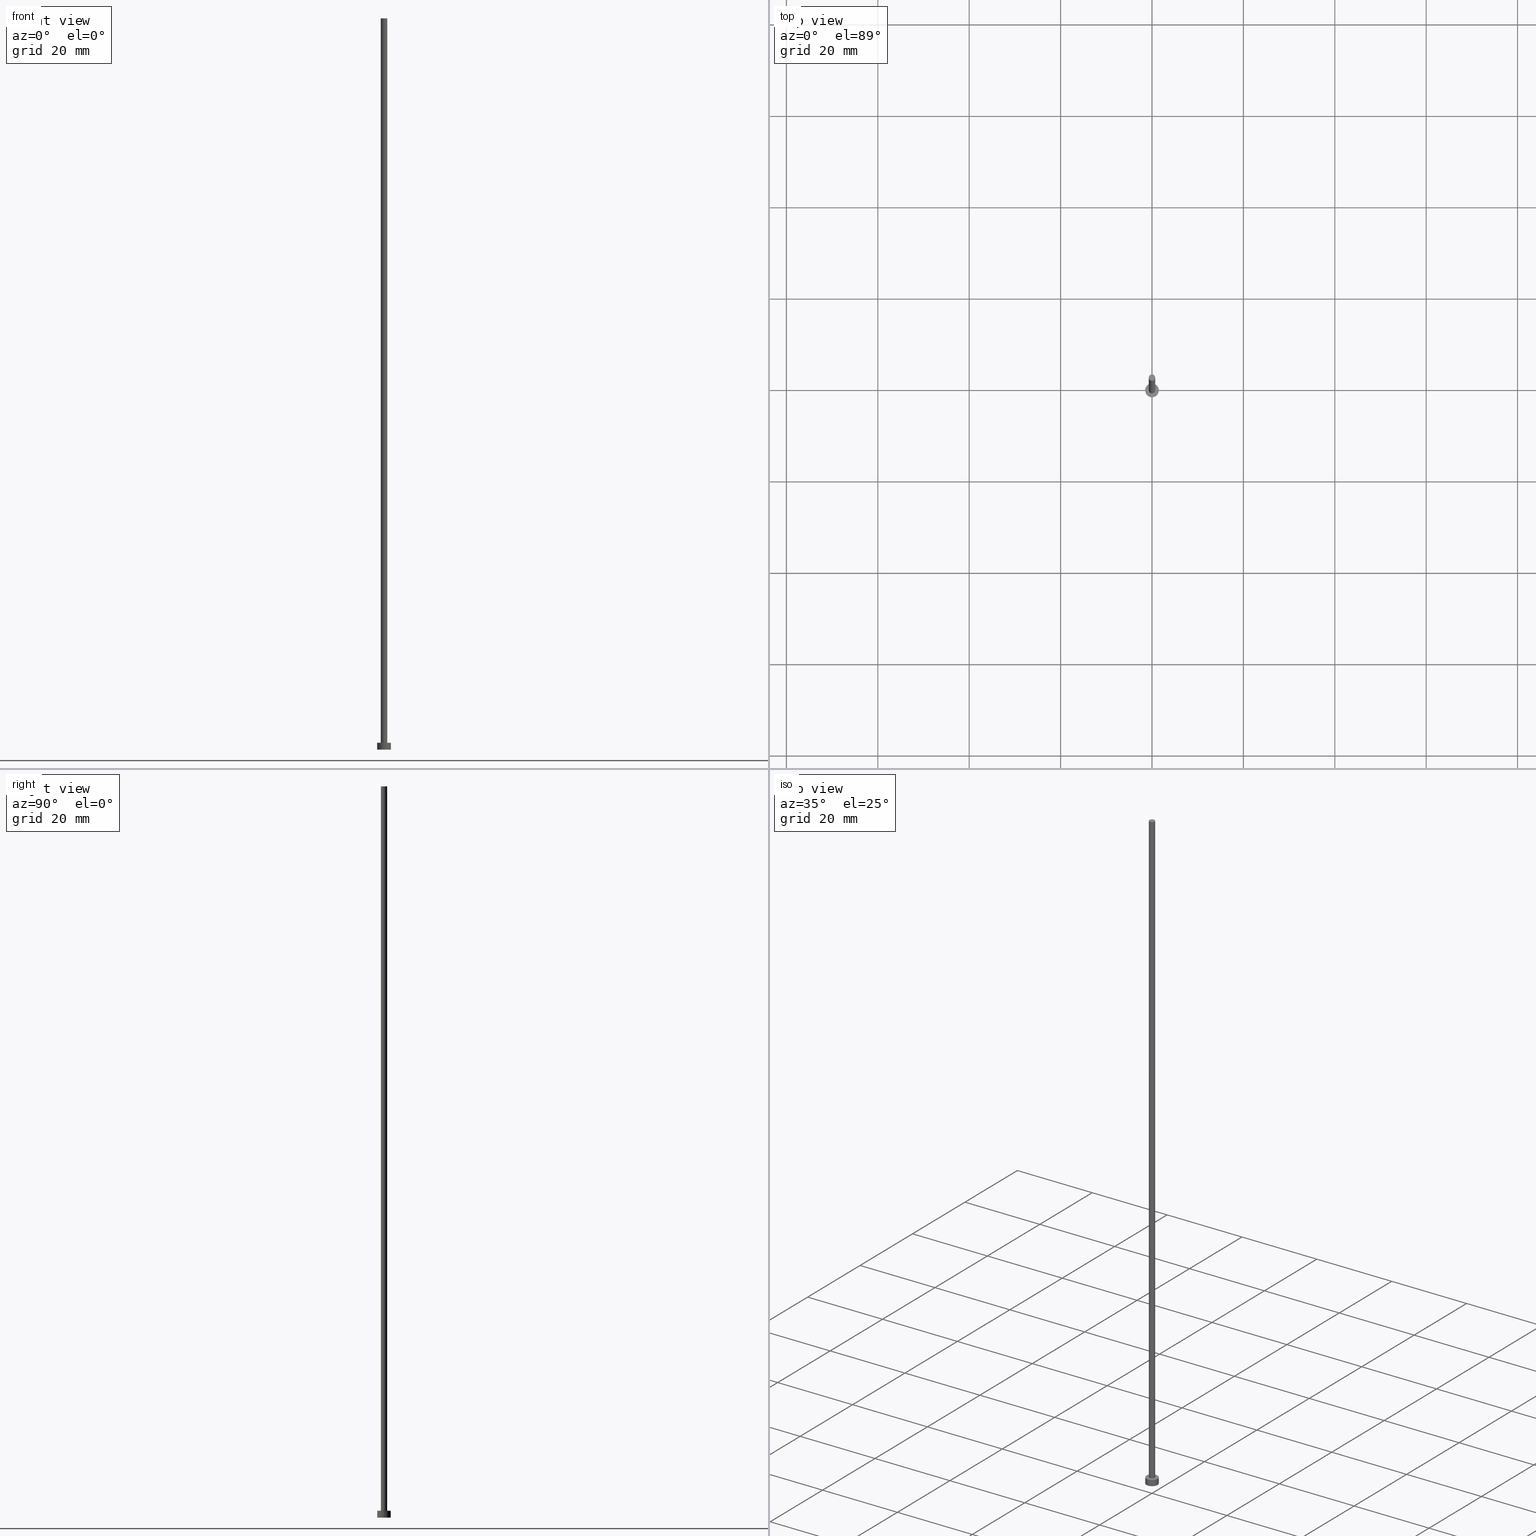
[diagram: canonical four-view strip — front | top / right | iso, engineering-drawing reading convention]
A machine part, canonical four-view strip (front | top / right | iso — engineering-drawing reading convention). The complete STEP part file that produces these views, byte-faithful:
ISO-10303-21;
HEADER;
FILE_DESCRIPTION (( 'STEP AP203' ),
    '1' );
FILE_NAME ('8cf9.STEP',
    '2023-02-13T15:25:21',
    ( '' ),
    ( '' ),
    'SwSTEP 2.0',
    'SolidWorks 2019',
    '' );
FILE_SCHEMA (( 'CONFIG_CONTROL_DESIGN' ));
ENDSEC;

DATA;
#1 = CARTESIAN_POINT ( 'NONE',  ( 0.000000000000000000, 0.000000000000000000, 160.0000000000000000 ) ) ;
#2 = CC_DESIGN_PERSON_AND_ORGANIZATION_ASSIGNMENT ( #185, #42, ( #193 ) ) ;
#3 = APPLICATION_CONTEXT ( 'configuration controlled 3d designs of mechanical parts and assemblies' ) ;
#4 = CC_DESIGN_APPROVAL ( #113, ( #115 ) ) ;
#5 = ORIENTED_EDGE ( 'NONE', *, *, #92, .T. ) ;
#6 = EDGE_CURVE ( 'NONE', #149, #45, #29, .T. ) ;
#7 = AXIS2_PLACEMENT_3D ( 'NONE', #114, #95, #34 ) ;
#8 = DIRECTION ( 'NONE',  ( 0.000000000000000000, 0.000000000000000000, 1.000000000000000000 ) ) ;
#9 = AXIS2_PLACEMENT_3D ( 'NONE', #63, #150, #192 ) ;
#10 = ORIENTED_EDGE ( 'NONE', *, *, #223, .T. ) ;
#11 = CARTESIAN_POINT ( 'NONE',  ( -0.6999999999999999556, 0.000000000000000000, 160.0000000000000000 ) ) ;
#12 = ADVANCED_FACE ( 'NONE', ( #183, #89 ), #155, .T. ) ;
#13 = VERTEX_POINT ( 'NONE', #11 ) ;
#14 = AXIS2_PLACEMENT_3D ( 'NONE', #157, #80, #221 ) ;
#15 = COORDINATED_UNIVERSAL_TIME_OFFSET ( 1, 0, .AHEAD. ) ;
#16 = DIRECTION ( 'NONE',  ( 0.000000000000000000, 0.000000000000000000, 1.000000000000000000 ) ) ;
#17 = VERTEX_POINT ( 'NONE', #152 ) ;
#18 = CALENDAR_DATE ( 2023, 13, 2 ) ;
#19 = UNCERTAINTY_MEASURE_WITH_UNIT (LENGTH_MEASURE( 1.000000000000000082E-05 ), #249, 'distance_accuracy_value', 'NONE');
#20 = AXIS2_PLACEMENT_3D ( 'NONE', #32, #16, #134 ) ;
#21 = EDGE_LOOP ( 'NONE', ( #209, #61, #133, #68 ) ) ;
#22 = DIRECTION ( 'NONE',  ( -1.000000000000000000, 0.000000000000000000, 0.000000000000000000 ) ) ;
#23 = CARTESIAN_POINT ( 'NONE',  ( -1.500000000000000222, 0.000000000000000000, 1.500000000000000000 ) ) ;
#24 = DIRECTION ( 'NONE',  ( -0.000000000000000000, -0.000000000000000000, -1.000000000000000000 ) ) ;
#25 = ORIENTED_EDGE ( 'NONE', *, *, #6, .T. ) ;
#26 =( NAMED_UNIT ( * ) PLANE_ANGLE_UNIT ( ) SI_UNIT ( $, .RADIAN. ) );
#27 = EDGE_LOOP ( 'NONE', ( #177, #102 ) ) ;
#28 = FACE_OUTER_BOUND ( 'NONE', #21, .T. ) ;
#29 = LINE ( 'NONE', #199, #175 ) ;
#30 = CARTESIAN_POINT ( 'NONE',  ( 0.6999999999999999556, 8.572527594031471957E-17, 160.0000000000000000 ) ) ;
#31 = EDGE_CURVE ( 'NONE', #67, #45, #93, .T. ) ;
#32 = CARTESIAN_POINT ( 'NONE',  ( 0.000000000000000000, 0.000000000000000000, 1.500000000000000000 ) ) ;
#33 = ORIENTED_EDGE ( 'NONE', *, *, #223, .F. ) ;
#34 = DIRECTION ( 'NONE',  ( -1.000000000000000000, 0.000000000000000000, 0.000000000000000000 ) ) ;
#35 = CARTESIAN_POINT ( 'NONE',  ( 0.000000000000000000, 0.000000000000000000, 0.000000000000000000 ) ) ;
#36 = PRODUCT_RELATED_PRODUCT_CATEGORY ( 'detail', '', ( #234 ) ) ;
#37 = LOCAL_TIME ( 16, 25, 21.00000000000000000, #198 ) ;
#38 = DATE_TIME_ROLE ( 'classification_date' ) ;
#39 = PERSON_AND_ORGANIZATION ( #75, #179 ) ;
#40 = MECHANICAL_CONTEXT ( 'NONE', #3, 'mechanical' ) ;
#41 = ORIENTED_EDGE ( 'NONE', *, *, #208, .F. ) ;
#42 = PERSON_AND_ORGANIZATION_ROLE ( 'design_supplier' ) ;
#43 = LINE ( 'NONE', #101, #129 ) ;
#44 = DIRECTION ( 'NONE',  ( -0.000000000000000000, -0.000000000000000000, -1.000000000000000000 ) ) ;
#45 = VERTEX_POINT ( 'NONE', #235 ) ;
#46 = DIRECTION ( 'NONE',  ( 0.000000000000000000, 0.000000000000000000, 1.000000000000000000 ) ) ;
#47 = APPROVAL_DATE_TIME ( #228, #96 ) ;
#48 = EDGE_LOOP ( 'NONE', ( #220, #250 ) ) ;
#49 = PERSON_AND_ORGANIZATION ( #75, #179 ) ;
#50 = AXIS2_PLACEMENT_3D ( 'NONE', #72, #46, #104 ) ;
#51 = CARTESIAN_POINT ( 'NONE',  ( 1.500000000000000222, 1.836970198721030181E-16, 1.500000000000000000 ) ) ;
#52 = APPROVAL_STATUS ( 'not_yet_approved' ) ;
#53 = LOCAL_TIME ( 16, 25, 21.00000000000000000, #218 ) ;
#54 = LOCAL_TIME ( 16, 25, 21.00000000000000000, #254 ) ;
#55 = DIRECTION ( 'NONE',  ( -0.000000000000000000, -0.000000000000000000, -1.000000000000000000 ) ) ;
#56 = EDGE_CURVE ( 'NONE', #231, #76, #165, .T. ) ;
#57 = DATE_AND_TIME ( #123, #170 ) ;
#58 = PERSON_AND_ORGANIZATION_ROLE ( 'design_owner' ) ;
#59 = AXIS2_PLACEMENT_3D ( 'NONE', #147, #172, #126 ) ;
#60 = APPROVAL_PERSON_ORGANIZATION ( #127, #96, #195 ) ;
#61 = ORIENTED_EDGE ( 'NONE', *, *, #56, .T. ) ;
#62 = AXIS2_PLACEMENT_3D ( 'NONE', #207, #188, #212 ) ;
#63 = CARTESIAN_POINT ( 'NONE',  ( 0.000000000000000000, 0.000000000000000000, 160.0000000000000000 ) ) ;
#64 = CALENDAR_DATE ( 2023, 13, 2 ) ;
#65 = CARTESIAN_POINT ( 'NONE',  ( 1.500000000000000222, 1.836970198721030181E-16, 0.000000000000000000 ) ) ;
#66 = CARTESIAN_POINT ( 'NONE',  ( 0.000000000000000000, 0.000000000000000000, 160.0000000000000000 ) ) ;
#67 = VERTEX_POINT ( 'NONE', #194 ) ;
#68 = ORIENTED_EDGE ( 'NONE', *, *, #215, .F. ) ;
#69 = DIRECTION ( 'NONE',  ( 1.000000000000000000, 0.000000000000000000, -0.000000000000000000 ) ) ;
#70 = CC_DESIGN_PERSON_AND_ORGANIZATION_ASSIGNMENT ( #87, #90, ( #153 ) ) ;
#71 = PERSON_AND_ORGANIZATION ( #75, #179 ) ;
#72 = CARTESIAN_POINT ( 'NONE',  ( 0.000000000000000000, 0.000000000000000000, 1.500000000000000000 ) ) ;
#73 = EDGE_CURVE ( 'NONE', #231, #83, #85, .T. ) ;
#74 = DIRECTION ( 'NONE',  ( -0.000000000000000000, -0.000000000000000000, -1.000000000000000000 ) ) ;
#75 = PERSON ( 'NEUR�EN�', 'NEUR�EN�', 'NEUR�EN�', ('NEUR�EN�'), ('NEUR�EN�'), ('NEUR�EN�') ) ;
#76 = VERTEX_POINT ( 'NONE', #65 ) ;
#77 = DIRECTION ( 'NONE',  ( -0.000000000000000000, -0.000000000000000000, -1.000000000000000000 ) ) ;
#78 = CARTESIAN_POINT ( 'NONE',  ( 0.000000000000000000, 0.000000000000000000, 1.500000000000000000 ) ) ;
#79 = EDGE_LOOP ( 'NONE', ( #125, #128, #5, #166 ) ) ;
#80 = DIRECTION ( 'NONE',  ( 0.000000000000000000, 0.000000000000000000, 1.000000000000000000 ) ) ;
#81 = CC_DESIGN_APPROVAL ( #135, ( #193 ) ) ;
#82 = CC_DESIGN_DATE_AND_TIME_ASSIGNMENT ( #178, #38, ( #115 ) ) ;
#83 = VERTEX_POINT ( 'NONE', #23 ) ;
#84 = ORIENTED_EDGE ( 'NONE', *, *, #31, .F. ) ;
#85 = CIRCLE ( 'NONE', #238, 1.500000000000000222 ) ;
#86 = APPROVAL_PERSON_ORGANIZATION ( #49, #135, #91 ) ;
#87 = PERSON_AND_ORGANIZATION ( #75, #179 ) ;
#88 = EDGE_LOOP ( 'NONE', ( #163, #41, #159, #10 ) ) ;
#89 = FACE_OUTER_BOUND ( 'NONE', #27, .T. ) ;
#90 = PERSON_AND_ORGANIZATION_ROLE ( 'creator' ) ;
#91 = APPROVAL_ROLE ( '' ) ;
#92 = EDGE_CURVE ( 'NONE', #13, #67, #43, .T. ) ;
#93 = CIRCLE ( 'NONE', #50, 0.6999999999999999556 ) ;
#94 = LOCAL_TIME ( 16, 25, 21.00000000000000000, #15 ) ;
#95 = DIRECTION ( 'NONE',  ( -0.000000000000000000, -0.000000000000000000, -1.000000000000000000 ) ) ;
#96 = APPROVAL ( #246, 'NEUR�EN�' ) ;
#97 = CIRCLE ( 'NONE', #62, 1.500000000000000222 ) ;
#98 = CC_DESIGN_DATE_AND_TIME_ASSIGNMENT ( #151, #232, ( #153 ) ) ;
#99 = CC_DESIGN_SECURITY_CLASSIFICATION ( #115, ( #193 ) ) ;
#100 = CARTESIAN_POINT ( 'NONE',  ( 1.500000000000000222, 1.836970198721030181E-16, 1.500000000000000000 ) ) ;
#101 = CARTESIAN_POINT ( 'NONE',  ( -0.6999999999999999556, 0.000000000000000000, 160.0000000000000000 ) ) ;
#102 = ORIENTED_EDGE ( 'NONE', *, *, #73, .T. ) ;
#103 = APPROVAL_DATE_TIME ( #230, #113 ) ;
#104 = DIRECTION ( 'NONE',  ( 1.000000000000000000, 0.000000000000000000, 0.000000000000000000 ) ) ;
#105 = MANIFOLD_SOLID_BREP ( 'P�idat vysunut�m3', #146 ) ;
#106 = FACE_OUTER_BOUND ( 'NONE', #202, .T. ) ;
#107 = ORIENTED_EDGE ( 'NONE', *, *, #92, .F. ) ;
#108 = DIRECTION ( 'NONE',  ( -1.000000000000000000, 0.000000000000000000, 0.000000000000000000 ) ) ;
#109 = EDGE_CURVE ( 'NONE', #13, #149, #164, .T. ) ;
#110 = APPROVAL_STATUS ( 'not_yet_approved' ) ;
#111 = AXIS2_PLACEMENT_3D ( 'NONE', #35, #173, #252 ) ;
#112 = APPROVAL_DATE_TIME ( #57, #135 ) ;
#113 = APPROVAL ( #52, 'NEUR�EN�' ) ;
#114 = CARTESIAN_POINT ( 'NONE',  ( 0.000000000000000000, 0.000000000000000000, 1.500000000000000000 ) ) ;
#115 = SECURITY_CLASSIFICATION ( '', '', #242 ) ;
#116 = PLANE ( 'NONE',  #9 ) ;
#117 = CYLINDRICAL_SURFACE ( 'NONE', #233, 0.6999999999999999556 ) ;
#118 = CIRCLE ( 'NONE', #148, 0.6999999999999999556 ) ;
#119 = AXIS2_PLACEMENT_3D ( 'NONE', #248, #210, #69 ) ;
#120 = DIRECTION ( 'NONE',  ( 0.000000000000000000, 0.000000000000000000, 1.000000000000000000 ) ) ;
#121 = EDGE_CURVE ( 'NONE', #76, #17, #97, .T. ) ;
#122 = CYLINDRICAL_SURFACE ( 'NONE', #136, 0.6999999999999999556 ) ;
#123 = CALENDAR_DATE ( 2023, 13, 2 ) ;
#124 = APPROVAL_PERSON_ORGANIZATION ( #39, #113, #139 ) ;
#125 = ORIENTED_EDGE ( 'NONE', *, *, #6, .F. ) ;
#126 = DIRECTION ( 'NONE',  ( 1.000000000000000000, 0.000000000000000000, -0.000000000000000000 ) ) ;
#127 = PERSON_AND_ORGANIZATION ( #75, #179 ) ;
#128 = ORIENTED_EDGE ( 'NONE', *, *, #109, .F. ) ;
#129 = VECTOR ( 'NONE', #24, 1000.000000000000000 ) ;
#130 = CALENDAR_DATE ( 2023, 13, 2 ) ;
#131 = ADVANCED_BREP_SHAPE_REPRESENTATION ( '8cf9', ( #105, #111 ), #200 ) ;
#132 = CC_DESIGN_PERSON_AND_ORGANIZATION_ASSIGNMENT ( #219, #162, ( #115 ) ) ;
#133 = ORIENTED_EDGE ( 'NONE', *, *, #121, .T. ) ;
#134 = DIRECTION ( 'NONE',  ( 1.000000000000000000, 0.000000000000000000, 0.000000000000000000 ) ) ;
#135 = APPROVAL ( #110, 'NEUR�EN�' ) ;
#136 = AXIS2_PLACEMENT_3D ( 'NONE', #1, #216, #22 ) ;
#137 = DIRECTION ( 'NONE',  ( 0.000000000000000000, 0.000000000000000000, 1.000000000000000000 ) ) ;
#138 = CARTESIAN_POINT ( 'NONE',  ( 0.000000000000000000, 0.000000000000000000, 1.500000000000000000 ) ) ;
#139 = APPROVAL_ROLE ( '' ) ;
#140 = DIRECTION ( 'NONE',  ( 1.000000000000000000, 0.000000000000000000, 0.000000000000000000 ) ) ;
#141 = FACE_OUTER_BOUND ( 'NONE', #79, .T. ) ;
#142 = ADVANCED_FACE ( 'NONE', ( #141 ), #117, .T. ) ;
#143 = COORDINATED_UNIVERSAL_TIME_OFFSET ( 1, 0, .AHEAD. ) ;
#144 = ORIENTED_EDGE ( 'NONE', *, *, #171, .F. ) ;
#145 = ORIENTED_EDGE ( 'NONE', *, *, #239, .T. ) ;
#146 = CLOSED_SHELL ( 'NONE', ( #201, #158, #168, #12, #176, #142, #197 ) ) ;
#147 = CARTESIAN_POINT ( 'NONE',  ( 0.000000000000000000, 0.000000000000000000, 1.500000000000000000 ) ) ;
#148 = AXIS2_PLACEMENT_3D ( 'NONE', #66, #156, #140 ) ;
#149 = VERTEX_POINT ( 'NONE', #30 ) ;
#150 = DIRECTION ( 'NONE',  ( 0.000000000000000000, 0.000000000000000000, 1.000000000000000000 ) ) ;
#151 = DATE_AND_TIME ( #64, #94 ) ;
#152 = CARTESIAN_POINT ( 'NONE',  ( -1.500000000000000222, 0.000000000000000000, 0.000000000000000000 ) ) ;
#153 = PRODUCT_DEFINITION ( 'NEZN�M�', '', #193, #184 ) ;
#154 = PERSON_AND_ORGANIZATION_ROLE ( 'creator' ) ;
#155 = PLANE ( 'NONE',  #59 ) ;
#156 = DIRECTION ( 'NONE',  ( 0.000000000000000000, 0.000000000000000000, 1.000000000000000000 ) ) ;
#157 = CARTESIAN_POINT ( 'NONE',  ( 0.000000000000000000, 0.000000000000000000, 0.000000000000000000 ) ) ;
#158 = ADVANCED_FACE ( 'NONE', ( #28 ), #182, .T. ) ;
#159 = ORIENTED_EDGE ( 'NONE', *, *, #215, .T. ) ;
#160 = LINE ( 'NONE', #251, #227 ) ;
#161 = CALENDAR_DATE ( 2023, 13, 2 ) ;
#162 = PERSON_AND_ORGANIZATION_ROLE ( 'classification_officer' ) ;
#163 = ORIENTED_EDGE ( 'NONE', *, *, #56, .F. ) ;
#164 = CIRCLE ( 'NONE', #226, 0.6999999999999999556 ) ;
#165 = LINE ( 'NONE', #51, #204 ) ;
#166 = ORIENTED_EDGE ( 'NONE', *, *, #31, .T. ) ;
#167 = FACE_OUTER_BOUND ( 'NONE', #88, .T. ) ;
#168 = ADVANCED_FACE ( 'NONE', ( #167 ), #247, .T. ) ;
#169 = FACE_OUTER_BOUND ( 'NONE', #48, .T. ) ;
#170 = LOCAL_TIME ( 16, 25, 21.00000000000000000, #143 ) ;
#171 = EDGE_CURVE ( 'NONE', #149, #13, #118, .T. ) ;
#172 = DIRECTION ( 'NONE',  ( 0.000000000000000000, 0.000000000000000000, 1.000000000000000000 ) ) ;
#173 = DIRECTION ( 'NONE',  ( 0.000000000000000000, 0.000000000000000000, 1.000000000000000000 ) ) ;
#174 = FACE_OUTER_BOUND ( 'NONE', #205, .T. ) ;
#175 = VECTOR ( 'NONE', #44, 1000.000000000000000 ) ;
#176 = ADVANCED_FACE ( 'NONE', ( #106 ), #229, .F. ) ;
#177 = ORIENTED_EDGE ( 'NONE', *, *, #208, .T. ) ;
#178 = DATE_AND_TIME ( #161, #53 ) ;
#179 = ORGANIZATION ( 'NEUR�EN�', 'NEUR�EN�', '' ) ;
#180 = CC_DESIGN_PERSON_AND_ORGANIZATION_ASSIGNMENT ( #71, #154, ( #193 ) ) ;
#181 = CIRCLE ( 'NONE', #14, 1.500000000000000222 ) ;
#182 = CYLINDRICAL_SURFACE ( 'NONE', #206, 1.500000000000000222 ) ;
#183 = FACE_BOUND ( 'NONE', #241, .T. ) ;
#184 = DESIGN_CONTEXT ( 'detailed design', #240, 'design' ) ;
#185 = PERSON_AND_ORGANIZATION ( #75, #179 ) ;
#186 = APPLICATION_PROTOCOL_DEFINITION ( 'international standard', 'config_control_design', 1994, #3 ) ;
#187 = CC_DESIGN_PERSON_AND_ORGANIZATION_ASSIGNMENT ( #237, #58, ( #234 ) ) ;
#188 = DIRECTION ( 'NONE',  ( 0.000000000000000000, 0.000000000000000000, 1.000000000000000000 ) ) ;
#189 = DIRECTION ( 'NONE',  ( -1.000000000000000000, 0.000000000000000000, 0.000000000000000000 ) ) ;
#190 = DIRECTION ( 'NONE',  ( 1.000000000000000000, 0.000000000000000000, 0.000000000000000000 ) ) ;
#191 = SHAPE_DEFINITION_REPRESENTATION ( #203, #131 ) ;
#192 = DIRECTION ( 'NONE',  ( 1.000000000000000000, 0.000000000000000000, -0.000000000000000000 ) ) ;
#193 = PRODUCT_DEFINITION_FORMATION_WITH_SPECIFIED_SOURCE ( 'LIBOVOLN�', '', #234, .NOT_KNOWN. ) ;
#194 = CARTESIAN_POINT ( 'NONE',  ( -0.6999999999999999556, 0.000000000000000000, 1.500000000000000000 ) ) ;
#195 = APPROVAL_ROLE ( '' ) ;
#196 = CARTESIAN_POINT ( 'NONE',  ( 0.000000000000000000, 0.000000000000000000, 1.500000000000000000 ) ) ;
#197 = ADVANCED_FACE ( 'NONE', ( #169 ), #116, .T. ) ;
#198 = COORDINATED_UNIVERSAL_TIME_OFFSET ( 1, 0, .AHEAD. ) ;
#199 = CARTESIAN_POINT ( 'NONE',  ( 0.6999999999999999556, 8.572527594031471957E-17, 160.0000000000000000 ) ) ;
#200 =( GEOMETRIC_REPRESENTATION_CONTEXT ( 3 ) GLOBAL_UNCERTAINTY_ASSIGNED_CONTEXT ( ( #19 ) ) GLOBAL_UNIT_ASSIGNED_CONTEXT ( ( #249, #26, #245 ) ) REPRESENTATION_CONTEXT ( 'NONE', 'WORKASPACE' ) );
#201 = ADVANCED_FACE ( 'NONE', ( #174 ), #122, .T. ) ;
#202 = EDGE_LOOP ( 'NONE', ( #33, #211 ) ) ;
#203 = PRODUCT_DEFINITION_SHAPE ( 'NONE', 'NONE',  #153 ) ;
#204 = VECTOR ( 'NONE', #244, 1000.000000000000000 ) ;
#205 = EDGE_LOOP ( 'NONE', ( #144, #25, #145, #107 ) ) ;
#206 = AXIS2_PLACEMENT_3D ( 'NONE', #138, #74, #108 ) ;
#207 = CARTESIAN_POINT ( 'NONE',  ( 0.000000000000000000, 0.000000000000000000, 0.000000000000000000 ) ) ;
#208 = EDGE_CURVE ( 'NONE', #83, #231, #255, .T. ) ;
#209 = ORIENTED_EDGE ( 'NONE', *, *, #73, .F. ) ;
#210 = DIRECTION ( 'NONE',  ( 0.000000000000000000, 0.000000000000000000, 1.000000000000000000 ) ) ;
#211 = ORIENTED_EDGE ( 'NONE', *, *, #121, .F. ) ;
#212 = DIRECTION ( 'NONE',  ( 1.000000000000000000, 0.000000000000000000, 0.000000000000000000 ) ) ;
#213 = CIRCLE ( 'NONE', #20, 0.6999999999999999556 ) ;
#214 = CARTESIAN_POINT ( 'NONE',  ( 0.000000000000000000, 0.000000000000000000, 160.0000000000000000 ) ) ;
#215 = EDGE_CURVE ( 'NONE', #83, #17, #160, .T. ) ;
#216 = DIRECTION ( 'NONE',  ( -0.000000000000000000, -0.000000000000000000, -1.000000000000000000 ) ) ;
#217 = CC_DESIGN_APPROVAL ( #96, ( #153 ) ) ;
#218 = COORDINATED_UNIVERSAL_TIME_OFFSET ( 1, 0, .AHEAD. ) ;
#219 = PERSON_AND_ORGANIZATION ( #75, #179 ) ;
#220 = ORIENTED_EDGE ( 'NONE', *, *, #109, .T. ) ;
#221 = DIRECTION ( 'NONE',  ( 1.000000000000000000, 0.000000000000000000, 0.000000000000000000 ) ) ;
#222 = DIRECTION ( 'NONE',  ( 1.000000000000000000, 0.000000000000000000, 0.000000000000000000 ) ) ;
#223 = EDGE_CURVE ( 'NONE', #17, #76, #181, .T. ) ;
#224 = APPLICATION_PROTOCOL_DEFINITION ( 'international standard', 'config_control_design', 1994, #240 ) ;
#225 = CARTESIAN_POINT ( 'NONE',  ( 0.000000000000000000, 0.000000000000000000, 160.0000000000000000 ) ) ;
#226 = AXIS2_PLACEMENT_3D ( 'NONE', #225, #8, #236 ) ;
#227 = VECTOR ( 'NONE', #77, 1000.000000000000000 ) ;
#228 = DATE_AND_TIME ( #130, #37 ) ;
#229 = PLANE ( 'NONE',  #119 ) ;
#230 = DATE_AND_TIME ( #18, #54 ) ;
#231 = VERTEX_POINT ( 'NONE', #100 ) ;
#232 = DATE_TIME_ROLE ( 'creation_date' ) ;
#233 = AXIS2_PLACEMENT_3D ( 'NONE', #214, #55, #189 ) ;
#234 = PRODUCT ( '8cf9', '8cf9', '', ( #40 ) ) ;
#235 = CARTESIAN_POINT ( 'NONE',  ( 0.6999999999999999556, 8.572527594031471957E-17, 1.500000000000000000 ) ) ;
#236 = DIRECTION ( 'NONE',  ( 1.000000000000000000, 0.000000000000000000, 0.000000000000000000 ) ) ;
#237 = PERSON_AND_ORGANIZATION ( #75, #179 ) ;
#238 = AXIS2_PLACEMENT_3D ( 'NONE', #196, #137, #222 ) ;
#239 = EDGE_CURVE ( 'NONE', #45, #67, #213, .T. ) ;
#240 = APPLICATION_CONTEXT ( 'configuration controlled 3d designs of mechanical parts and assemblies' ) ;
#241 = EDGE_LOOP ( 'NONE', ( #84, #253 ) ) ;
#242 = SECURITY_CLASSIFICATION_LEVEL ( 'unclassified' ) ;
#243 = AXIS2_PLACEMENT_3D ( 'NONE', #78, #120, #190 ) ;
#244 = DIRECTION ( 'NONE',  ( -0.000000000000000000, -0.000000000000000000, -1.000000000000000000 ) ) ;
#245 =( NAMED_UNIT ( * ) SI_UNIT ( $, .STERADIAN. ) SOLID_ANGLE_UNIT ( ) );
#246 = APPROVAL_STATUS ( 'not_yet_approved' ) ;
#247 = CYLINDRICAL_SURFACE ( 'NONE', #7, 1.500000000000000222 ) ;
#248 = CARTESIAN_POINT ( 'NONE',  ( 0.000000000000000000, 0.000000000000000000, 0.000000000000000000 ) ) ;
#249 =( LENGTH_UNIT ( ) NAMED_UNIT ( * ) SI_UNIT ( .MILLI., .METRE. ) );
#250 = ORIENTED_EDGE ( 'NONE', *, *, #171, .T. ) ;
#251 = CARTESIAN_POINT ( 'NONE',  ( -1.500000000000000222, 0.000000000000000000, 1.500000000000000000 ) ) ;
#252 = DIRECTION ( 'NONE',  ( 1.000000000000000000, 0.000000000000000000, 0.000000000000000000 ) ) ;
#253 = ORIENTED_EDGE ( 'NONE', *, *, #239, .F. ) ;
#254 = COORDINATED_UNIVERSAL_TIME_OFFSET ( 1, 0, .AHEAD. ) ;
#255 = CIRCLE ( 'NONE', #243, 1.500000000000000222 ) ;
ENDSEC;
END-ISO-10303-21;
